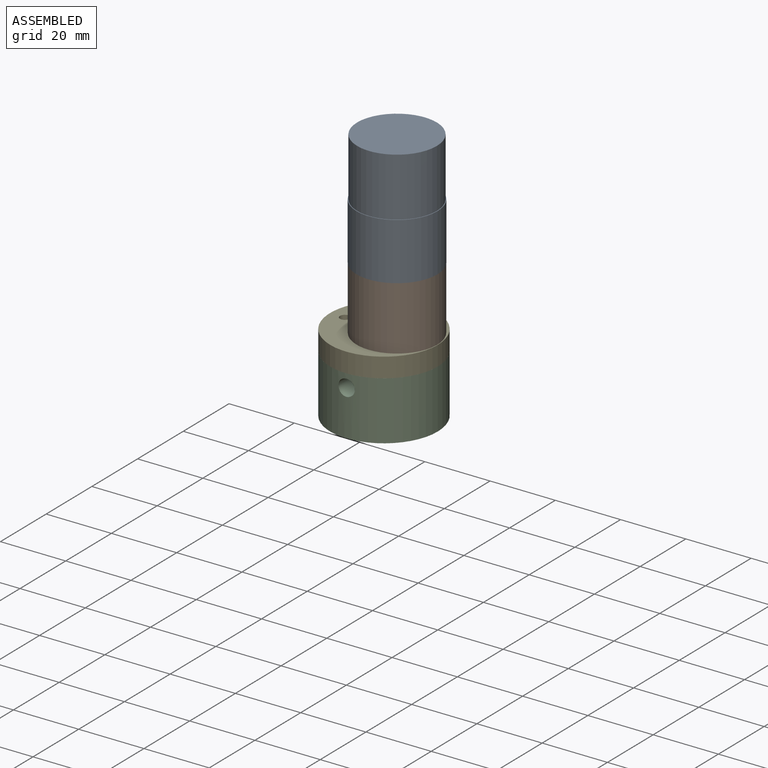
[diagram: assembled view]
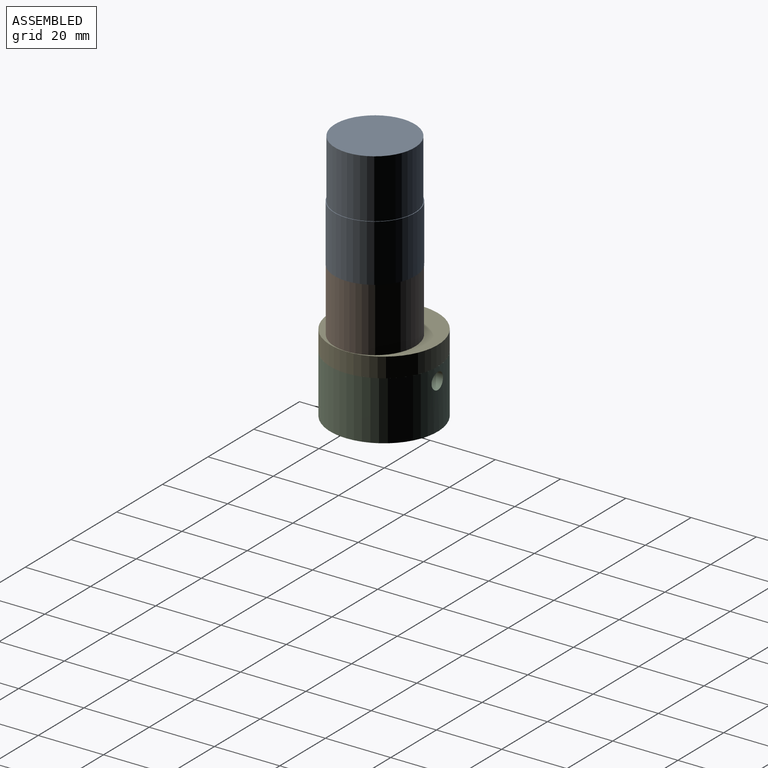
[diagram: assembled view, second angle]
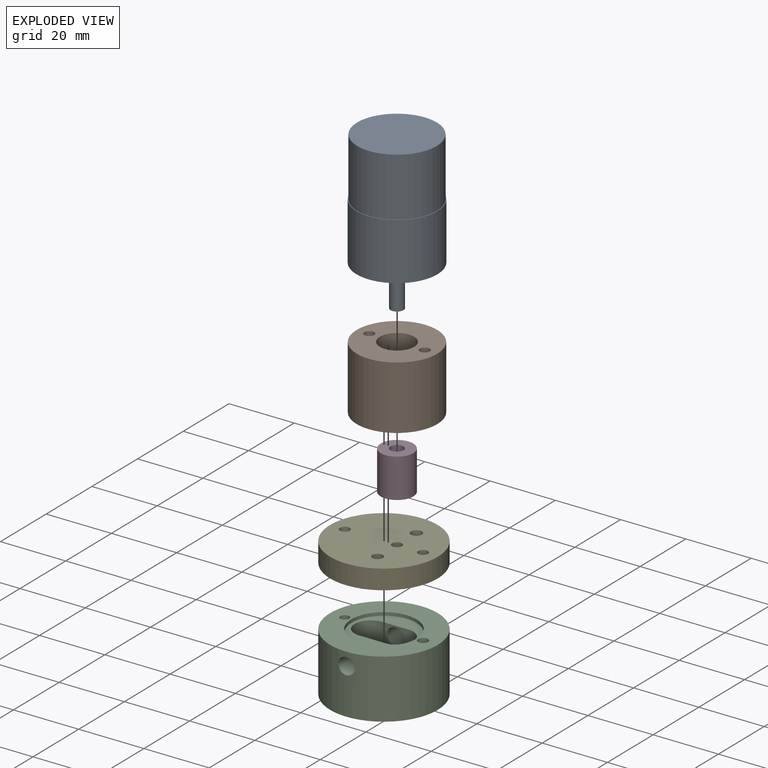
[diagram: exploded view]
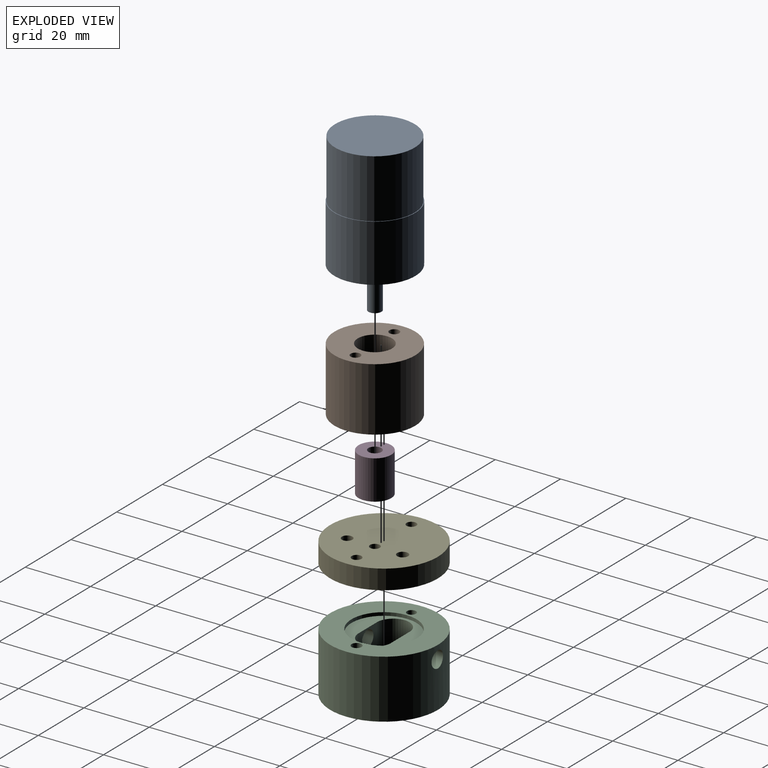
[diagram: exploded view, second angle]
ASSEMBLY  parts=5 mates=4
PART A: 13 faces, bbox 24.8x48.2x24.8 mm
  f0: cylinder r=12.4mm len=24.8mm, axis (0,1,0), area 1363.5mm2, adj f1,f2
  f1: plane 24.8x24.8mm, normal (0,-1,0), area 430.4mm2, adj f0,f3,f9,f11
  f2: plane 24.8x24.8mm, normal (0,1,0), area 15.5mm2, adj f0,f7
  f3: cylinder r=3.5mm len=7mm, axis (0,1,0), area 57.2mm2, adj f1,f4
  f4: plane 7x7mm, normal (0,-1,0), area 25.9mm2, adj f3,f5
  f5: cylinder r=2mm len=10.1mm, axis (0,1,0), area 126.9mm2, adj f4,f6
  f6: plane 4x4mm, normal (0,-1,0), area 12.6mm2, adj f5
  f7: cylinder r=12.2mm len=24.4mm, axis (0,-1,0), area 1379.8mm2, adj f2,f8
  f8: plane 24.4x24.4mm, normal (0,1,0), area 467.6mm2, adj f7
  f9: cylinder r=1.5mm len=5mm, axis (0,-1,0), area 47.1mm2, adj f1,f10
  f10: plane 3x3mm, normal (0,-1,0), area 7.1mm2, adj f9
  f11: cylinder r=1.5mm len=5mm, axis (0,-1,0), area 47.1mm2, adj f1,f12
  f12: plane 3x3mm, normal (0,-1,0), area 7.1mm2, adj f11
PART B: 14 faces, bbox 24.7x19.5x24.7 mm
  f0: cylinder r=1.5mm len=12.5mm, axis (0,-1,0), area 117.8mm2, adj f4,f8
  f1: cylinder r=1.5mm len=12.5mm, axis (0,-1,0), area 117.8mm2, adj f4,f6
  f2: cylinder r=12.35mm len=24.7mm, axis (0,1,0), area 1513.1mm2, adj f3,f4
  f3: plane 24.7x24.7mm, normal (0,-1,0), area 321.9mm2, adj f2,f5,f7,f9,f10,f12
  f4: plane 24.7x24.7mm, normal (0,1,0), area 378.4mm2, adj f0,f1,f2,f5
  f5: cylinder r=5.25mm len=19.5mm, axis (0,-1,0), area 643.2mm2, adj f3,f4
  f6: plane 6x6mm, normal (0,-1,0), area 21.2mm2, adj f1,f7
  f7: cylinder r=3mm len=7mm, axis (0,-1,0), area 131.9mm2, adj f3,f6
  f8: plane 6x6mm, normal (0,-1,0), area 21.2mm2, adj f0,f9
  f9: cylinder r=3mm len=7mm, axis (0,-1,0), area 131.9mm2, adj f3,f8
  f10: cylinder r=1.5mm len=8mm, axis (0,-1,0), area 75.4mm2, adj f3,f11
  f11: plane 3x3mm, normal (0,-1,0), area 7.1mm2, adj f10
  f12: cylinder r=1.5mm len=8mm, axis (0,-1,0), area 75.4mm2, adj f3,f13
  f13: plane 3x3mm, normal (0,-1,0), area 7.1mm2, adj f12
PART C: 20 faces, bbox 33x33x18 mm
  f0: plane 33x33mm, normal (0,0,1), area 528mm2, adj f1,f4,f14,f15
  f1: cylinder r=16.5mm len=33mm, axis (0,0,-1), area 1826.5mm2, adj f0,f2,f18,f19
  f2: plane 33x33mm, normal (0,0,-1), area 778.3mm2, adj f1,f16,f17
  f3: plane 20x20mm, normal (0,0,1), area 155.9mm2, adj f4,f6,f7,f8,f9
  f4: cylinder r=10mm len=20mm, axis (0,0,1), area 62.8mm2, adj f0,f3
  f5: plane 18x10mm, normal (0,0,1), area 144.2mm2, adj f6,f7,f8,f9,f10,f12
  f6: plane 11x7.19mm, normal (0,1,0), area 59.5mm2, adj f3,f5,f8,f9,f19
  f7: plane 11x7.19mm, normal (0,-1,0), area 59.5mm2, adj f3,f5,f8,f9,f18
  f8: cylinder r=5mm len=11mm, axis (0,0,1), area 181.7mm2, adj f3,f5,f6,f7
  f9: cylinder r=5mm len=11mm, axis (0,0,1), area 181.7mm2, adj f3,f5,f6,f7
  f10: cylinder r=1.5mm len=4mm, axis (0,0,1), area 37.7mm2, adj f5,f11
  f11: plane 3x3mm, normal (0,0,1), area 7.1mm2, adj f10
  f12: cylinder r=1.5mm len=4mm, axis (0,0,1), area 37.7mm2, adj f5,f13
  f13: plane 3x3mm, normal (0,0,1), area 7.1mm2, adj f12
  f14: cylinder r=1.52mm len=16.02mm, axis (0,0,1), area 153.1mm2, adj f0,f17
  f15: cylinder r=1.37mm len=15.87mm, axis (0,0,1), area 136.8mm2, adj f0,f16
  f16: cone r=3.5mm half-angle=45deg, axis (0,0,-1), area 46.1mm2, adj f2,f15
  f17: cone r=3.5mm half-angle=45deg, axis (0,0,-1), area 44.1mm2, adj f2,f14
  f18: cylinder r=2.5mm len=11.52mm, axis (0,-1,0), area 179.4mm2, adj f1,f7
  f19: cylinder r=2.5mm len=11.52mm, axis (0,-1,0), area 179.4mm2, adj f1,f6
PART D: 6 faces, bbox 10x12x10 mm
  f0: cylinder r=5mm len=12mm, axis (0,1,0), area 377mm2, adj f1,f2
  f1: plane 10x10mm, normal (0,-1,0), area 71.5mm2, adj f0,f3
  f2: plane 10x10mm, normal (0,1,0), area 66mm2, adj f0,f4
  f3: cylinder r=1.5mm len=6mm, axis (0,-1,0), area 56.5mm2, adj f1,f5
  f4: cylinder r=2mm len=6mm, axis (0,-1,0), area 75.4mm2, adj f2,f5
  f5: plane 4x4mm, normal (0,1,0), area 5.5mm2, adj f3,f4
PART E: 15 faces, bbox 33x33x7 mm
  f0: cylinder r=10mm len=16.53mm, axis (0,0,1), area 19.5mm2, adj f3,f5,f13,f14
  f1: cylinder r=16.5mm len=33mm, axis (0,0,-1), area 622mm2, adj f2,f3
  f2: plane 33x33mm, normal (0,0,1), area 817.1mm2, adj f1,f10,f11,f12,f13,f14
  f3: plane 33x33mm, normal (0,0,-1), area 522.1mm2, adj f0,f1,f4,f11,f12,f13,f14
  f4: cylinder r=10mm len=20mm, axis (0,0,1), area 37.1mm2, adj f3,f5,f13,f14
  f5: plane 20x20mm, normal (0,0,-1), area 266.6mm2, adj f0,f4,f6,f9,f13,f14
  f6: cylinder r=1.5mm len=4mm, axis (0,0,-1), area 37.7mm2, adj f5,f7
  f7: plane 3x3mm, normal (0,0,-1), area 7.1mm2, adj f6
  f8: plane 6x6mm, normal (0,0,-1), area 21.2mm2, adj f9,f10
  f9: cylinder r=3mm len=6mm, axis (0,0,-1), area 28.3mm2, adj f5,f8
  f10: cylinder r=1.5mm len=5.5mm, axis (0,0,-1), area 51.8mm2, adj f2,f8
  f11: cylinder r=1.5mm len=6mm, axis (0,0,-1), area 56.5mm2, adj f2,f3
  f12: cylinder r=1.5mm len=6mm, axis (0,0,-1), area 56.5mm2, adj f2,f3
  f13: cylinder r=1.68mm len=7mm, axis (0,0,-1), area 69.6mm2, adj f0,f2,f3,f4,f5
  f14: cylinder r=1.61mm len=7mm, axis (0,0,-1), area 66.9mm2, adj f0,f2,f3,f4,f5
PLACE A rot(axis=(0.58,-0.58,-0.58),120deg) t=(-3.55,-1.33,56.55)mm
PLACE B rot(axis=(1,0,0),90deg) t=(-3.55,-1.33,39.05)mm
PLACE C t=(-7.55,-1.33,-4.45)mm fixed
PLACE D rot(axis=(1,0,0),90deg) t=(-3.55,-1.33,31.55)mm
PLACE E t=(-7.55,-1.33,13.55)mm
MATE fastened A.f9 <-> B.f0  axis (0,0,-1) through (4.95,-1.33,39.05)mm
MATE fastened C.f14 <-> E.f11  axis (0,0,1) through (4.45,-1.33,13.55)mm
MATE revolute E.f10 <-> D.f0  axis (0,0,1) through (-3.55,-1.33,19.55)mm
MATE revolute D.f0 <-> B.f5  axis (0,0,-1) through (-3.55,-1.33,19.55)mm
